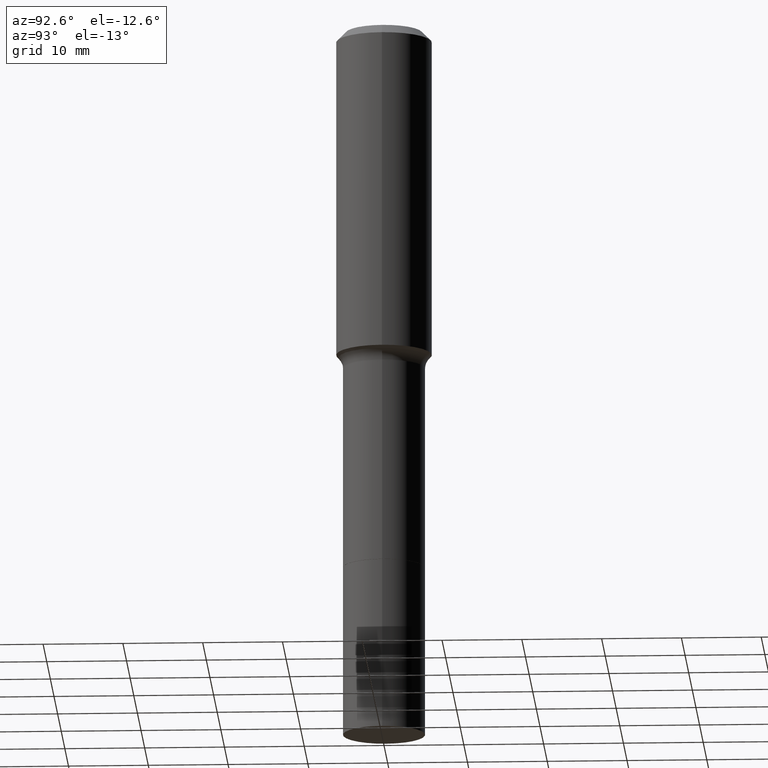
[diagram: clean part render]
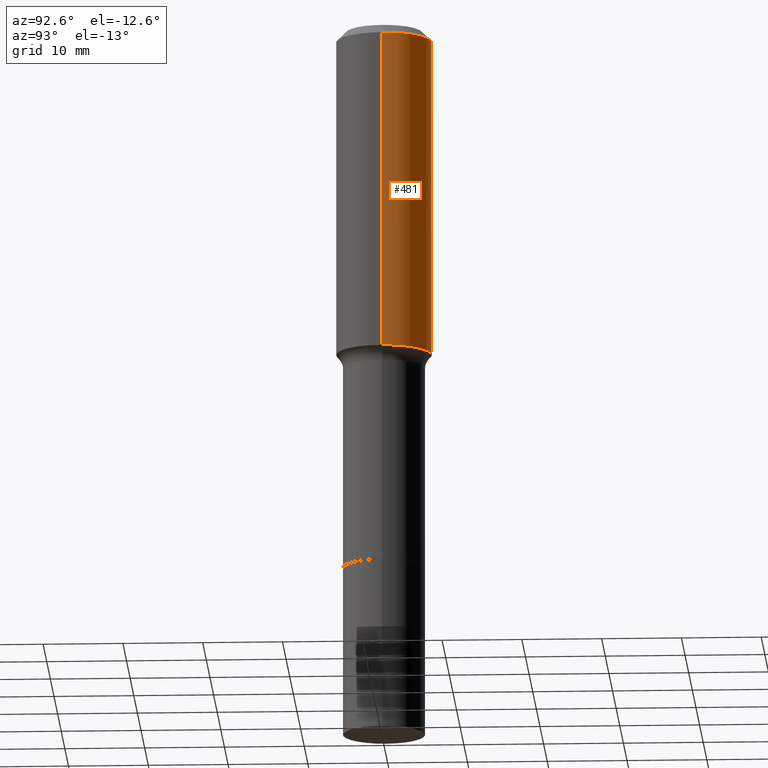
[diagram: same view with one face highlighted and labeled with its STEP entity id]
A machine part, auxiliary view. The second image highlights one B-rep face of the part: STEP entity #481.
In plain terms, the highlighted cylindrical surface (partial cylindrical patch) has radius 5.9995 mm, axis along (-0, 0, 1).
Its self-contained STEP definition (entity closure, byte-faithful):
#11 = AXIS2_PLACEMENT_3D ( 'NONE', #343, #304, #465 ) ;
#32 = VERTEX_POINT ( 'NONE', #131 ) ;
#51 = VERTEX_POINT ( 'NONE', #58 ) ;
#58 = CARTESIAN_POINT ( 'NONE',  ( 0.2361999999999999933, -1.814313362916447440E-15, -0.04724000000000027483 ) ) ;
#78 = DIRECTION ( 'NONE',  ( -2.445468806185136597E-29, 3.491481338843145583E-15, 1.000000000000000000 ) ) ;
#81 = EDGE_CURVE ( 'NONE', #115, #407, #423, .T. ) ;
#100 = CARTESIAN_POINT ( 'NONE',  ( 0.2362000000000001043, -1.649375784469496920E-15, 1.151752954443000508E-29 ) ) ;
#108 = CARTESIAN_POINT ( 'NONE',  ( -0.2362000000000001043, 1.678301941865357380E-15, -1.161852468318209317E-29 ) ) ;
#115 = VERTEX_POINT ( 'NONE', #265 ) ;
#131 = CARTESIAN_POINT ( 'NONE',  ( -0.2361999999999999933, -1.242595281846650388E-15, -0.04724000000000027483 ) ) ;
#159 = ORIENTED_EDGE ( 'NONE', *, *, #167, .T. ) ;
#167 = EDGE_CURVE ( 'NONE', #407, #32, #388, .T. ) ;
#188 = CARTESIAN_POINT ( 'NONE',  ( 0.000000000000000000, 0.000000000000000000, 0.000000000000000000 ) ) ;
#191 = DIRECTION ( 'NONE',  ( 1.000000000000000000, -6.982962677686266711E-15, 0.000000000000000000 ) ) ;
#196 = ORIENTED_EDGE ( 'NONE', *, *, #505, .F. ) ;
#199 = ORIENTED_EDGE ( 'NONE', *, *, #302, .F. ) ;
#235 = AXIS2_PLACEMENT_3D ( 'NONE', #188, #283, #440 ) ;
#265 = CARTESIAN_POINT ( 'NONE',  ( 0.2362000000000002153, -7.326232653446561936E-15, -1.625916428600478580 ) ) ;
#283 = DIRECTION ( 'NONE',  ( -2.445468806185136597E-29, 3.491481338843145583E-15, 1.000000000000000000 ) ) ;
#302 = EDGE_CURVE ( 'NONE', #115, #51, #426, .T. ) ;
#304 = DIRECTION ( 'NONE',  ( -2.445468806185136597E-29, 3.491481338843145583E-15, 1.000000000000000000 ) ) ;
#309 = CIRCLE ( 'NONE', #437, 0.2361999999999999933 ) ;
#316 = CARTESIAN_POINT ( 'NONE',  ( -0.2362000000000002153, -3.998554927111705861E-15, -1.625916428600478580 ) ) ;
#322 = CYLINDRICAL_SURFACE ( 'NONE', #235, 0.2362000000000001043 ) ;
#332 = VECTOR ( 'NONE', #427, 39.37007874015748143 ) ;
#343 = CARTESIAN_POINT ( 'NONE',  ( 3.976127907606413432E-29, -5.676856868977064622E-15, -1.625916428600478580 ) ) ;
#352 = FACE_OUTER_BOUND ( 'NONE', #493, .T. ) ;
#357 = ORIENTED_EDGE ( 'NONE', *, *, #81, .T. ) ;
#380 = DIRECTION ( 'NONE',  ( -2.445468806185136877E-29, 3.491481338843145188E-15, 1.000000000000000000 ) ) ;
#388 = LINE ( 'NONE', #108, #332 ) ;
#407 = VERTEX_POINT ( 'NONE', #316 ) ;
#423 = CIRCLE ( 'NONE', #11, 0.2362000000000002153 ) ;
#426 = LINE ( 'NONE', #100, #457 ) ;
#427 = DIRECTION ( 'NONE',  ( -2.445468806185136877E-29, 3.491481338843145188E-15, 1.000000000000000000 ) ) ;
#437 = AXIS2_PLACEMENT_3D ( 'NONE', #516, #78, #191 ) ;
#440 = DIRECTION ( 'NONE',  ( 1.000000000000000000, -6.982962677686266711E-15, 4.876176775795935793E-29 ) ) ;
#457 = VECTOR ( 'NONE', #380, 39.37007874015748143 ) ;
#465 = DIRECTION ( 'NONE',  ( 1.000000000000000000, -6.982962677686266711E-15, 0.000000000000000000 ) ) ;
#481 = ADVANCED_FACE ( 'NONE', ( #352 ), #322, .T. ) ;
#493 = EDGE_LOOP ( 'NONE', ( #357, #159, #196, #199 ) ) ;
#505 = EDGE_CURVE ( 'NONE', #51, #32, #309, .T. ) ;
#516 = CARTESIAN_POINT ( 'NONE',  ( 1.155239464041865331E-30, -1.649375784469511612E-16, -0.04724000000000027483 ) ) ;